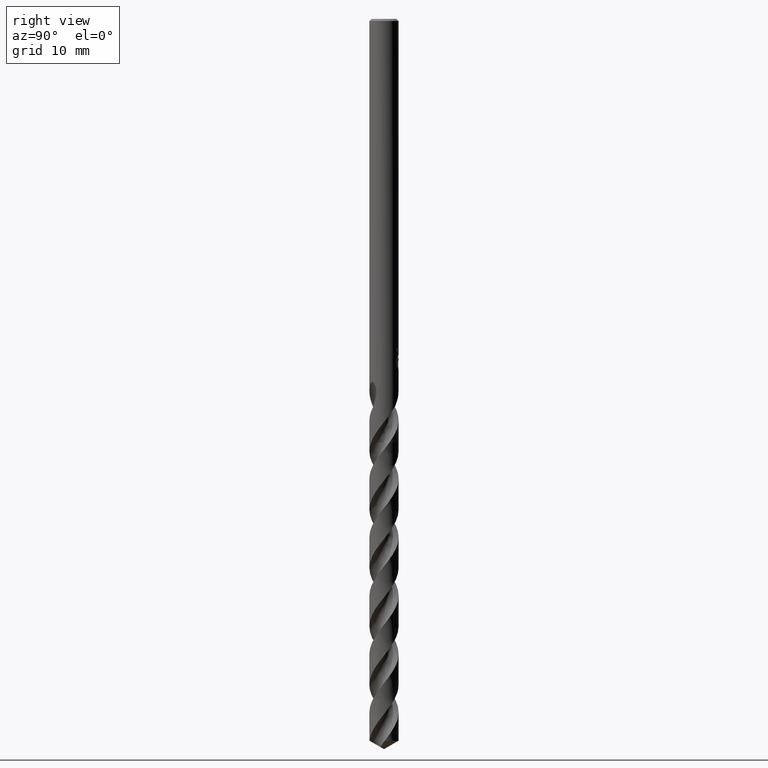
[diagram: clean part render]
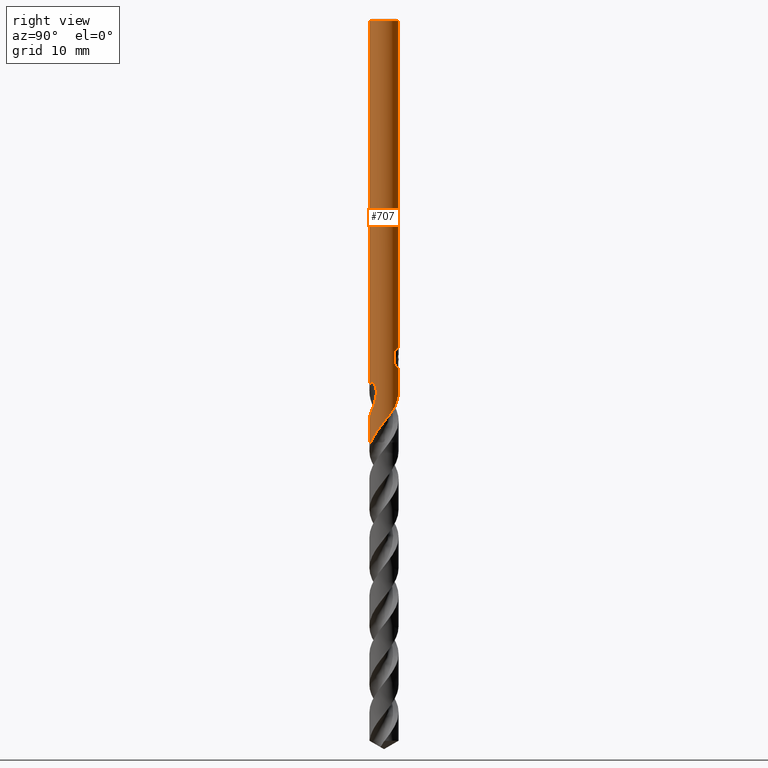
[diagram: same view with one face highlighted and labeled with its STEP entity id]
A machine part, right view. The second image highlights one B-rep face of the part: STEP entity #707.
In plain terms, the highlighted cylindrical surface (edge-blend (fillet) strip) has radius 2 mm, axis along (-0, -0, 1).
Its self-contained STEP definition (entity closure, byte-faithful):
#341=VERTEX_POINT('',#976);
#391=EDGE_CURVE('',#465,#607,#1033,.T.);
#415=EDGE_CURVE('',#919,#891,#1060,.T.);
#453=VERTEX_POINT('',#1101);
#465=VERTEX_POINT('',#1114);
#497=EDGE_CURVE('',#911,#937,#1150,.T.);
#509=VERTEX_POINT('',#1163);
#515=EDGE_CURVE('',#453,#881,#1170,.T.);
#517=EDGE_CURVE('',#897,#879,#1172,.T.);
#607=VERTEX_POINT('',#1271);
#625=EDGE_CURVE('',#873,#827,#1291,.T.);
#653=VERTEX_POINT('',#1321);
#681=EDGE_CURVE('',#919,#937,#1352,.T.);
#693=EDGE_CURVE('',#509,#873,#1365,.T.);
#695=EDGE_CURVE('',#949,#465,#1367,.T.);
#707=ADVANCED_FACE('',(#1379),#1380,.T.);
#715=EDGE_CURVE('',#851,#879,#1391,.T.);
#797=EDGE_CURVE('',#849,#911,#1480,.T.);
#807=EDGE_CURVE('',#653,#881,#1490,.T.);
#825=EDGE_CURVE('',#341,#653,#1509,.T.);
#827=VERTEX_POINT('',#1511);
#849=VERTEX_POINT('',#1533);
#851=VERTEX_POINT('',#1535);
#853=EDGE_CURVE('',#851,#607,#1537,.T.);
#873=VERTEX_POINT('',#1559);
#879=VERTEX_POINT('',#1566);
#881=VERTEX_POINT('',#1568);
#887=EDGE_CURVE('',#897,#341,#1574,.T.);
#889=EDGE_CURVE('',#827,#949,#1576,.T.);
#891=VERTEX_POINT('',#1578);
#897=VERTEX_POINT('',#1584);
#911=VERTEX_POINT('',#1600);
#915=EDGE_CURVE('',#891,#509,#1604,.T.);
#919=VERTEX_POINT('',#1608);
#937=VERTEX_POINT('',#1627);
#943=EDGE_CURVE('',#849,#453,#1633,.T.);
#949=VERTEX_POINT('',#1639);
#976=CARTESIAN_POINT('',(1.62728432652948,-1.16273200722759,-51.9338395401998));
#1033=B_SPLINE_CURVE_WITH_KNOTS('',3,(#4003,#4004,#4005,#4006,#4007,#4008,#4009,#4010,#4011,#4012,#4013,#4014,#4015,#4016,#4017,#4018,#4019,#4020,#4021,#4022,#4023,#4024,#4025,#4026,#4027,#4028,#4029),.UNSPECIFIED.,.F.,.F.,(4,2,3,2,2,2,2,2,2,2,2,2,4),(-0.548215590012305,-0.274107795006152,0.0,0.274107795006152,0.548215590012304,0.825730471423241,1.10324535283418,1.37444912584474,1.6456528988553,1.91870457575909,2.19175625266287,2.46480792956666,2.73785960647044),.UNSPECIFIED.);
#1060=B_SPLINE_CURVE_WITH_KNOTS('',3,(#4358,#4359,#4360,#4361,#4362,#4363,#4364,#4365,#4366,#4367,#4368,#4369,#4370,#4371),.UNSPECIFIED.,.F.,.F.,(4,2,2,2,2,2,4),(6.29875163181924,6.63672345938473,6.96307452388774,7.28942558839074,7.61577665289375,7.94212771739676,8.26462777482947),.UNSPECIFIED.);
#1101=CARTESIAN_POINT('',(2.44921270781215E-016,-2.0,-58.0));
#1114=CARTESIAN_POINT('',(0.799431726384364,1.83327818806915,-45.000000276873));
#1150=B_SPLINE_CURVE_WITH_KNOTS('',3,(#8004,#8005,#8006,#8007,#8008,#8009,#8010,#8011,#8012,#8013,#8014,#8015,#8016,#8017,#8018,#8019,#8020,#8021,#8022,#8023,#8024,#8025,#8026,#8027,#8028,#8029,#8030,#8031),.UNSPECIFIED.,.F.,.F.,(4,2,2,2,2,2,2,2,2,2,2,2,2,4),(0.0,0.979891025783958,1.51493345566995,1.9995474122048,2.56255251247716,3.23885008512034,3.82500886700077,4.09063559365806,4.28477636240836,4.46849031469403,4.70154241769869,5.04250710011559,5.52722848363497,6.07843027913602),.UNSPECIFIED.);
#1163=CARTESIAN_POINT('',(0.873560781758957,1.79913633740545,-46.3198931596091));
#1170=LINE('',#8275,#8276);
#1172=LINE('',#8279,#8280);
#1271=CARTESIAN_POINT('',(-2.82033683478733E-016,2.0,-46.0232688117743));
#1291=B_SPLINE_CURVE_WITH_KNOTS('',3,(#10122,#10123,#10124,#10125,#10126,#10127,#10128,#10129,#10130,#10131),.UNSPECIFIED.,.F.,.F.,(4,2,2,2,4),(8.58706544059272,8.90956545396504,9.23206546733736,9.56645150553826,9.90083754373918),.UNSPECIFIED.);
#1321=CARTESIAN_POINT('',(1.39015468452944,-1.43786993607936,-53.029));
#1352=LINE('',#10308,#10309);
#1365=LINE('',#11768,#11769);
#1367=B_SPLINE_CURVE_WITH_KNOTS('',3,(#11772,#11773,#11774,#11775,#11776,#11777,#11778,#11779,#11780,#11781),.UNSPECIFIED.,.F.,.F.,(4,2,2,2,4),(0.668772102201479,1.00315815330222,1.33754420440296,1.66004422746341,1.98254425052387),.UNSPECIFIED.);
#1379=FACE_OUTER_BOUND('',#11826,.T.);
#1380=CYLINDRICAL_SURFACE('',#11827,2.0);
#1391=CIRCLE('',#13279,2.0);
#1480=B_SPLINE_CURVE_WITH_KNOTS('',3,(#14926,#14927,#14928,#14929,#14930,#14931,#14932,#14933,#14934,#14935,#14936,#14937,#14938,#14939,#14940,#14941,#14942,#14943,#14944,#14945,#14946,#14947,#14948,#14949,#14950,#14951,#14952,#14953,#14954,#14955,#14956,#14957),.UNSPECIFIED.,.F.,.F.,(4,2,2,2,2,2,2,2,2,2,2,2,2,2,2,4),(0.0,0.415921494881605,0.623686639973541,0.831137669082404,1.24699902469492,1.45488942522425,1.8700262735088,2.33743914243714,2.80376110627708,4.17282005337614,4.81087585188527,5.04513687412754,5.68085788181971,6.11884074519169,6.31265790987035,6.56537457699849),.UNSPECIFIED.);
#1490=B_SPLINE_CURVE_WITH_KNOTS('',3,(#15430,#15431,#15432,#15433,#15434,#15435,#15436,#15437,#15438,#15439,#15440,#15441,#15442,#15443,#15444,#15445,#15446,#15447,#15448,#15449,#15450,#15451,#15452,#15453,#15454,#15455,#15456,#15457,#15458,#15459),.UNSPECIFIED.,.F.,.F.,(4,2,2,2,2,2,2,2,2,2,2,2,2,2,4),(0.0,0.229077637584334,0.362068198094291,0.571144048715061,1.12078100853925,1.59148265090502,2.04437094566632,3.03302513812137,3.41907925140698,3.7569592121879,4.34834155991391,4.79191993273661,5.1245473191052,5.62384074209483,6.12295032197284),.UNSPECIFIED.);
#1509=B_SPLINE_CURVE_WITH_KNOTS('',3,(#16262,#16263,#16264,#16265),.UNSPECIFIED.,.F.,.F.,(4,4),(0.0,1.14943980484443),.UNSPECIFIED.);
#1511=CARTESIAN_POINT('',(1.33721006514658,1.48723543585765,-47.2901657003257));
#1533=CARTESIAN_POINT('',(0.910184588124461,-1.7808885466364,-58.0));
#1535=CARTESIAN_POINT('',(0.0,2.0,-0.299999999999997));
#1537=LINE('',#16593,#16594);
#1559=CARTESIAN_POINT('',(0.873560781758956,1.79913633740545,-47.7587351791531));
#1566=CARTESIAN_POINT('',(2.44921270781215E-016,-2.0,-0.299999999999997));
#1568=CARTESIAN_POINT('',(-7.06423472236059E-013,-1.99999999999999,-54.9892944147125));
#1574=B_SPLINE_CURVE_WITH_KNOTS('',3,(#17408,#17409,#17410,#17411,#17412,#17413,#17414,#17415,#17416,#17417,#17418,#17419,#17420,#17421,#17422,#17423,#17424,#17425,#17426,#17427,#17428,#17429,#17430,#17431,#17432,#17433,#17434,#17435),.UNSPECIFIED.,.F.,.F.,(4,2,2,2,2,2,2,2,2,2,2,2,2,4),(0.0,0.979891025783956,1.51493345566995,1.99954741220481,2.56255251247721,3.23885008512057,3.82500886700108,4.09063559365836,4.28477636240868,4.46849031469436,4.70154241769904,5.04250710011594,5.52722848363531,6.07843027913632),.UNSPECIFIED.);
#1576=LINE('',#17438,#17439);
#1578=CARTESIAN_POINT('',(0.29010312703583,1.97884819419885,-47.9998328990228));
#1584=CARTESIAN_POINT('',(5.92093377365524E-013,-2.0,-50.9030385828122));
#1600=CARTESIAN_POINT('',(1.27443340277912,1.54136935932982,-53.029));
#1604=ELLIPSE('',#17995,6.09598914673955,2.0);
#1608=CARTESIAN_POINT('',(-7.24729156774638E-017,2.0,-48.0310253601033));
#1627=CARTESIAN_POINT('',(-5.96423247161545E-013,2.0,-50.9030385828122));
#1633=CIRCLE('',#19899,2.0);
#1639=CARTESIAN_POINT('',(1.33721006514658,1.48723543585765,-45.5150484364821));
#4003=CARTESIAN_POINT('',(0.666631086045354,1.88563066243578,-44.8151107929061));
#4004=CARTESIAN_POINT('',(0.729102320063794,1.86354507196998,-44.8780227488525));
#4005=CARTESIAN_POINT('',(0.783764436294818,1.84046805476626,-44.9577166766729));
#4006=CARTESIAN_POINT('',(0.856939166721748,1.80755766979359,-45.1337829674881));
#4007=CARTESIAN_POINT('',(0.875400981188567,1.79824167511881,-45.2302727475847));
#4008=CARTESIAN_POINT('',(0.875400981188567,1.79824167511881,-45.3216420125868));
#4009=CARTESIAN_POINT('',(0.875400981188567,1.79824167511881,-45.4130112775888));
#4010=CARTESIAN_POINT('',(0.856939166721748,1.80755766979359,-45.5095010576855));
#4011=CARTESIAN_POINT('',(0.783764436294818,1.84046805476626,-45.6855673485006));
#4012=CARTESIAN_POINT('',(0.729102320063794,1.86354507196998,-45.765261276321));
#4013=CARTESIAN_POINT('',(0.603383351336341,1.90799077087001,-45.8918671669599));
#4014=CARTESIAN_POINT('',(0.523220700755639,1.9324817755433,-45.9473851984488));
#4015=CARTESIAN_POINT('',(0.34594818022208,1.97194461719866,-46.0217410458937));
#4016=CARTESIAN_POINT('',(0.248747613970385,1.98662573029135,-46.0405166027747));
#4017=CARTESIAN_POINT('',(0.0664024182108826,2.00094055539991,-46.0405166027747));
#4018=CARTESIAN_POINT('',(-0.0298165717053062,2.00173631708055,-46.0225004233016));
#4019=CARTESIAN_POINT('',(-0.206564318568688,1.99127308369892,-45.949408961197));
#4020=CARTESIAN_POINT('',(-0.287121312363244,1.98033563604648,-45.8943562878938));
#4021=CARTESIAN_POINT('',(-0.414672305431932,1.95761889791181,-45.7673627445134));
#4022=CARTESIAN_POINT('',(-0.470171773775564,1.9443239450413,-45.6866825279345));
#4023=CARTESIAN_POINT('',(-0.544021821427443,1.92496686225787,-45.5093580077113));
#4024=CARTESIAN_POINT('',(-0.562348199187247,1.91931354991071,-45.4126592382214));
#4025=CARTESIAN_POINT('',(-0.562348199187247,1.91931354991071,-45.2306247869522));
#4026=CARTESIAN_POINT('',(-0.544021821427444,1.92496686225787,-45.1339260174622));
#4027=CARTESIAN_POINT('',(-0.470171773775569,1.9443239450413,-44.9566014972391));
#4028=CARTESIAN_POINT('',(-0.414672305431933,1.95761889791181,-44.8759212806602));
#4029=CARTESIAN_POINT('',(-0.350680272731794,1.96901583191115,-44.8122089191553));
#4358=CARTESIAN_POINT('',(-1.37648100360337,1.45096521209816,-47.3164588568619));
#4359=CARTESIAN_POINT('',(-1.31816673698937,1.50628596020562,-47.4024844309626));
#4360=CARTESIAN_POINT('',(-1.25225772826138,1.5618966813795,-47.4817936475267));
#4361=CARTESIAN_POINT('',(-1.11336107029931,1.66360432908601,-47.6210752807463));
#4362=CARTESIAN_POINT('',(-1.03560993885635,1.71378114990643,-47.6866869307959));
#4363=CARTESIAN_POINT('',(-0.863747529925185,1.80650878215652,-47.8045844711332));
#4364=CARTESIAN_POINT('',(-0.76962096706248,1.84902996088718,-47.8568713835843));
#4365=CARTESIAN_POINT('',(-0.569930857037894,1.92000186579586,-47.942429432433));
#4366=CARTESIAN_POINT('',(-0.46413564109323,1.94850394700092,-47.9757733351224));
#4367=CARTESIAN_POINT('',(-0.247741439375824,1.98764023510202,-48.0202051098028));
#4368=CARTESIAN_POINT('',(-0.137134918591789,1.99825621603292,-48.0312723335086));
#4369=CARTESIAN_POINT('',(0.0791270399578554,2.00132335359969,-48.0312723335086));
#4370=CARTESIAN_POINT('',(0.188762138964384,1.99403822635428,-48.0204593773478));
#4371=CARTESIAN_POINT('',(0.296280536758928,1.97793271966916,-47.9985887758549));
#8004=CARTESIAN_POINT('',(1.27443340277912,1.54136935932982,-53.029));
#8005=CARTESIAN_POINT('',(1.14250588825671,1.65044952900835,-52.7508201521267));
#8006=CARTESIAN_POINT('',(0.990819015406827,1.74741424166525,-52.4914669759725));
#8007=CARTESIAN_POINT('',(0.726322274010111,1.8662647703496,-52.0581995956864));
#8008=CARTESIAN_POINT('',(0.631144048625947,1.90045352762864,-51.9057617463303));
#8009=CARTESIAN_POINT('',(0.446891016817883,1.95154982399081,-51.6106814765841));
#8010=CARTESIAN_POINT('',(0.358638910892255,1.96960202720759,-51.4694145017769));
#8011=CARTESIAN_POINT('',(0.167610257338279,1.99565583830145,-51.1649465559366));
#8012=CARTESIAN_POINT('',(0.0632380601295488,2.00177256945438,-50.9993623681191));
#8013=CARTESIAN_POINT('',(-0.168545790328517,1.99689714022875,-50.6451232108188));
#8014=CARTESIAN_POINT('',(-0.305970157280141,1.9818173784247,-50.4435572717496));
#8015=CARTESIAN_POINT('',(-0.5709752997636,1.92091801941028,-50.1111889099651));
#8016=CARTESIAN_POINT('',(-0.717592089498264,1.87452037255226,-49.9490060983771));
#8017=CARTESIAN_POINT('',(-0.939495091515674,1.76727364078459,-49.7971383291646));
#8018=CARTESIAN_POINT('',(-1.01294639422617,1.72678556599747,-49.7596057523661));
#8019=CARTESIAN_POINT('',(-1.14164997194092,1.64341961466442,-49.7307739891013));
#8020=CARTESIAN_POINT('',(-1.19443854001709,1.60545413098805,-49.7302356217765));
#8021=CARTESIAN_POINT('',(-1.29276010169622,1.52725315415526,-49.7554693849241));
#8022=CARTESIAN_POINT('',(-1.33576104800075,1.48948364069817,-49.7791282882989));
#8023=CARTESIAN_POINT('',(-1.42326749715933,1.40671469713136,-49.8531542844012));
#8024=CARTESIAN_POINT('',(-1.4637519414578,1.36382174906286,-49.9078091708465));
#8025=CARTESIAN_POINT('',(-1.54667717482962,1.2701618498924,-50.0574712301094));
#8026=CARTESIAN_POINT('',(-1.58631378315256,1.21915733013005,-50.1684762546191));
#8027=CARTESIAN_POINT('',(-1.66084896159774,1.11674088399652,-50.4790559582158));
#8028=CARTESIAN_POINT('',(-1.68779515542677,1.07311639038955,-50.7002466517825));
#8029=CARTESIAN_POINT('',(-1.70502436417035,1.04555773694752,-51.2290721087933));
#8030=CARTESIAN_POINT('',(-1.69281634345216,1.07101764539592,-51.5611126594861));
#8031=CARTESIAN_POINT('',(-1.62728432652948,1.16273200722759,-51.9338395401997));
#8275=CARTESIAN_POINT('',(2.44921270781215E-016,-2.0,-54.0));
#8276=VECTOR('',#21695,1.0);
#8279=CARTESIAN_POINT('',(2.44921270781215E-016,-2.0,-54.0));
#8280=VECTOR('',#21696,1.0);
#10122=CARTESIAN_POINT('',(0.608889383206423,1.90506003029262,-47.9014263240358));
#10123=CARTESIAN_POINT('',(0.708571784879529,1.87319983770418,-47.8590444043302));
#10124=CARTESIAN_POINT('',(0.80276554539649,1.83434291458278,-47.8071148505396));
#10125=CARTESIAN_POINT('',(0.975043526735323,1.74886722480981,-47.6896937861503));
#10126=CARTESIAN_POINT('',(1.05314271318471,1.70228131076369,-47.6242003208407));
#10127=CARTESIAN_POINT('',(1.19292509476605,1.60758103315258,-47.4847832910623));
#10128=CARTESIAN_POINT('',(1.25937268791021,1.55566594184167,-47.4052131336702));
#10129=CARTESIAN_POINT('',(1.37700312772911,1.45257649498287,-47.2323227822555));
#10130=CARTESIAN_POINT('',(1.4282331184988,1.40141637672136,-47.1390261789774));
#10131=CARTESIAN_POINT('',(1.4701251946435,1.35599849265197,-47.0406377870177));
#10308=CARTESIAN_POINT('',(-2.44921270747736E-016,2.0,-54.0));
#10309=VECTOR('',#21884,1.0);
#11768=CARTESIAN_POINT('',(0.873560781758957,1.79913633740545,-47.0393141693811));
#11769=VECTOR('',#21895,1.0);
#11772=CARTESIAN_POINT('',(1.47012520202413,1.35599848465015,-45.7645763622699));
#11773=CARTESIAN_POINT('',(1.42823312429702,1.40141637093117,-45.6661879668164));
#11774=CARTESIAN_POINT('',(1.37700313158227,1.45257649149881,-45.5728913601929));
#11775=CARTESIAN_POINT('',(1.25937268715861,1.55566594260758,-45.4000010024707));
#11776=CARTESIAN_POINT('',(1.19292509135235,1.60758103586569,-45.3204308421202));
#11777=CARTESIAN_POINT('',(1.05314270451827,1.70228131624892,-45.1810138076661));
#11778=CARTESIAN_POINT('',(0.975043515457274,1.74886723125333,-45.1155203403939));
#11779=CARTESIAN_POINT('',(0.802765528370347,1.83434292218238,-44.9980992724811));
#11780=CARTESIAN_POINT('',(0.708571764716132,1.87319984550034,-44.9461697171302));
#11781=CARTESIAN_POINT('',(0.608889359769866,1.90506003778334,-44.9037877961724));
#11826=EDGE_LOOP('',(#21900,#21901,#21902,#21903,#21904,#21905,#21906,#21907,#21908,#21909,#21910,#21911,#21912,#21913,#21914,#21915,#21916,#21917));
#11827=AXIS2_PLACEMENT_3D('',#21918,#21919,#21920);
#13279=AXIS2_PLACEMENT_3D('',#21942,#21943,#21944);
#14926=CARTESIAN_POINT('',(0.910184588124468,-1.7808885466364,-58.0));
#14927=CARTESIAN_POINT('',(0.986467079647325,-1.74190174521136,-57.8909945021163));
#14928=CARTESIAN_POINT('',(1.06019067306473,-1.69804157411687,-57.7823329131507));
#14929=CARTESIAN_POINT('',(1.16621908890732,-1.62535132959475,-57.6189622437749));
#14930=CARTESIAN_POINT('',(1.20072654913493,-1.60002630357027,-57.5645585666677));
#14931=CARTESIAN_POINT('',(1.26796434961203,-1.54728449275103,-57.4556948699224));
#14932=CARTESIAN_POINT('',(1.3006796136606,-1.51988643856684,-57.4012132729875));
#14933=CARTESIAN_POINT('',(1.39632648100066,-1.43443197026042,-57.2377866565988));
#14934=CARTESIAN_POINT('',(1.45646875271388,-1.37333439480957,-57.1291082874376));
#14935=CARTESIAN_POINT('',(1.54059083420668,-1.2760941645493,-56.9657608822811));
#14936=CARTESIAN_POINT('',(1.56756797106405,-1.24280495984925,-56.9113479379802));
#14937=CARTESIAN_POINT('',(1.6451210980788,-1.14056473783576,-56.7481107280335));
#14938=CARTESIAN_POINT('',(1.69234719991609,-1.0692383701506,-56.6390295219066));
#14939=CARTESIAN_POINT('',(1.78277967941246,-0.911571838692856,-56.4077923291589));
#14940=CARTESIAN_POINT('',(1.82458997696537,-0.824708789590801,-56.2858141541884));
#14941=CARTESIAN_POINT('',(1.89530061341248,-0.645806101911879,-56.0412493658422));
#14942=CARTESIAN_POINT('',(1.92410268096062,-0.554110412206469,-55.9187295871557));
#14943=CARTESIAN_POINT('',(2.01111284224449,-0.186559567279473,-55.437899361125));
#14944=CARTESIAN_POINT('',(2.01729672149467,0.0980971668196515,-55.0848596941836));
#14945=CARTESIAN_POINT('',(1.9401076124219,0.503155517453704,-54.5593893348399));
#14946=CARTESIAN_POINT('',(1.90290797073903,0.629874860851269,-54.3887589332674));
#14947=CARTESIAN_POINT('',(1.83418971178482,0.798841441106601,-54.1610000821097));
#14948=CARTESIAN_POINT('',(1.81480694479178,0.841915291277125,-54.1032545367861));
#14949=CARTESIAN_POINT('',(1.73518748989895,1.0031939860136,-53.8786375845142));
#14950=CARTESIAN_POINT('',(1.67718312746244,1.09283514790804,-53.7334857070894));
#14951=CARTESIAN_POINT('',(1.5937307843099,1.20973338816218,-53.5403230050052));
#14952=CARTESIAN_POINT('',(1.52626758823306,1.29504642847036,-53.3905314543429));
#14953=CARTESIAN_POINT('',(1.4466439532652,1.38149236902227,-53.2543072502778));
#14954=CARTESIAN_POINT('',(1.42050014378064,1.40843860350198,-53.2140110740695));
#14955=CARTESIAN_POINT('',(1.35602736442459,1.47097719921524,-53.1240135785713));
#14956=CARTESIAN_POINT('',(1.31670765151073,1.50641620917484,-53.0755906769353));
#14957=CARTESIAN_POINT('',(1.27443340277912,1.54136935932982,-53.029));
#15430=CARTESIAN_POINT('',(1.39015468452944,-1.43786993607936,-53.029));
#15431=CARTESIAN_POINT('',(1.35767021840754,-1.46927641563684,-53.0905558432685));
#15432=CARTESIAN_POINT('',(1.32356746144234,-1.50015046338431,-53.1525371230667));
#15433=CARTESIAN_POINT('',(1.26577079944908,-1.54873931940322,-53.2507281516205));
#15434=CARTESIAN_POINT('',(1.24413673863658,-1.56618019849211,-53.2861837523025));
#15435=CARTESIAN_POINT('',(1.18666066112386,-1.61052953791549,-53.3775926939421));
#15436=CARTESIAN_POINT('',(1.15053227605037,-1.63656541485263,-53.432589108757));
#15437=CARTESIAN_POINT('',(1.01331110391237,-1.72844222702642,-53.6387295473662));
#15438=CARTESIAN_POINT('',(0.909084964694384,-1.78527714877727,-53.7892878698117));
#15439=CARTESIAN_POINT('',(0.710401973389509,-1.87225529619443,-54.0672440061321));
#15440=CARTESIAN_POINT('',(0.615862593801042,-1.90546937995851,-54.1938073491762));
#15441=CARTESIAN_POINT('',(0.425415654688868,-1.95662254990632,-54.4437048161422));
#15442=CARTESIAN_POINT('',(0.330537913377967,-1.97484530877693,-54.5664876338777));
#15443=CARTESIAN_POINT('',(0.0262091776432689,-2.01084205456157,-54.9571943597388));
#15444=CARTESIAN_POINT('',(-0.185253173995561,-2.00249297648808,-55.2228601561124));
#15445=CARTESIAN_POINT('',(-0.472239935601212,-1.94518475865174,-55.5951200962604));
#15446=CARTESIAN_POINT('',(-0.551766318739034,-1.92413843061563,-55.6995608752568));
#15447=CARTESIAN_POINT('',(-0.698045172738729,-1.87560845806364,-55.8955922398732));
#15448=CARTESIAN_POINT('',(-0.765024748091126,-1.84929863684518,-55.9870033658642));
#15449=CARTESIAN_POINT('',(-0.944895314932655,-1.76720280443896,-56.2387337847556));
#15450=CARTESIAN_POINT('',(-1.05422022943044,-1.70425175562808,-56.3986500462173));
#15451=CARTESIAN_POINT('',(-1.23396820993426,-1.57678222841074,-56.6789098568663));
#15452=CARTESIAN_POINT('',(-1.30702369884474,-1.51677323567229,-56.7988479063442));
#15453=CARTESIAN_POINT('',(-1.42694165882982,-1.40315672740491,-57.0091026536591));
#15454=CARTESIAN_POINT('',(-1.47571705335959,-1.35176686595226,-57.0991467812125));
#15455=CARTESIAN_POINT('',(-1.5906500769183,-1.21701719660768,-57.3244507967456));
#15456=CARTESIAN_POINT('',(-1.65305918140762,-1.13079000552582,-57.459352794085));
#15457=CARTESIAN_POINT('',(-1.76354992537428,-0.949301870566601,-57.7298107416314));
#15458=CARTESIAN_POINT('',(-1.81148318473936,-0.854296043414462,-57.8648323212794));
#15459=CARTESIAN_POINT('',(-1.85164800125341,-0.755909835532146,-58.0));
#16262=CARTESIAN_POINT('',(1.6272843265821,-1.16273200715394,-51.9338395402287));
#16263=CARTESIAN_POINT('',(1.56280597492687,-1.25297172740491,-52.3005828474421));
#16264=CARTESIAN_POINT('',(1.48509232689284,-1.34608276885509,-52.6695086289497));
#16265=CARTESIAN_POINT('',(1.39015468452944,-1.43786993607936,-53.029));
#16593=CARTESIAN_POINT('',(-2.44921270747736E-016,2.0,-54.0));
#16594=VECTOR('',#22049,1.0);
#17408=CARTESIAN_POINT('',(-1.27443340277912,-1.54136935932982,-53.029));
#17409=CARTESIAN_POINT('',(-1.14250588825672,-1.65044952900835,-52.7508201521267));
#17410=CARTESIAN_POINT('',(-0.990819015406827,-1.74741424166525,-52.4914669759725));
#17411=CARTESIAN_POINT('',(-0.726322274010111,-1.8662647703496,-52.0581995956864));
#17412=CARTESIAN_POINT('',(-0.631144048625946,-1.90045352762864,-51.9057617463303));
#17413=CARTESIAN_POINT('',(-0.446891016817883,-1.95154982399081,-51.6106814765841));
#17414=CARTESIAN_POINT('',(-0.358638910892255,-1.96960202720759,-51.4694145017769));
#17415=CARTESIAN_POINT('',(-0.16761025733827,-1.99565583830145,-51.1649465559366));
#17416=CARTESIAN_POINT('',(-0.0632380601295456,-2.00177256945438,-50.9993623681191));
#17417=CARTESIAN_POINT('',(0.168545790328537,-1.99689714022875,-50.6451232108188));
#17418=CARTESIAN_POINT('',(0.305970157280148,-1.9818173784247,-50.4435572717496));
#17419=CARTESIAN_POINT('',(0.570975299763575,-1.92091801941028,-50.1111889099651));
#17420=CARTESIAN_POINT('',(0.717592089498258,-1.87452037255226,-49.9490060983771));
#17421=CARTESIAN_POINT('',(0.939495091515668,-1.76727364078459,-49.7971383291646));
#17422=CARTESIAN_POINT('',(1.01294639422617,-1.72678556599748,-49.7596057523661));
#17423=CARTESIAN_POINT('',(1.14164997194093,-1.64341961466442,-49.7307739891013));
#17424=CARTESIAN_POINT('',(1.19443854001709,-1.60545413098805,-49.7302356217765));
#17425=CARTESIAN_POINT('',(1.29276010169622,-1.52725315415526,-49.7554693849241));
#17426=CARTESIAN_POINT('',(1.33576104800075,-1.48948364069817,-49.7791282882989));
#17427=CARTESIAN_POINT('',(1.42326749715933,-1.40671469713136,-49.8531542844012));
#17428=CARTESIAN_POINT('',(1.4637519414578,-1.36382174906286,-49.9078091708465));
#17429=CARTESIAN_POINT('',(1.54667717482962,-1.2701618498924,-50.0574712301094));
#17430=CARTESIAN_POINT('',(1.58631378315256,-1.21915733013006,-50.1684762546191));
#17431=CARTESIAN_POINT('',(1.66084896159774,-1.11674088399652,-50.4790559582158));
#17432=CARTESIAN_POINT('',(1.68779515542677,-1.07311639038955,-50.7002466517825));
#17433=CARTESIAN_POINT('',(1.70502436417035,-1.04555773694752,-51.2290721087933));
#17434=CARTESIAN_POINT('',(1.69281634345216,-1.07101764539592,-51.5611126594861));
#17435=CARTESIAN_POINT('',(1.62728432652948,-1.16273200722759,-51.9338395401997));
#17438=CARTESIAN_POINT('',(1.33721006514658,1.48723543585765,-46.4026070684039));
#17439=VECTOR('',#22083,1.0);
#17995=AXIS2_PLACEMENT_3D('',#22107,#22108,#22109);
#19899=AXIS2_PLACEMENT_3D('',#22128,#22129,#22130);
#21695=DIRECTION('',(-0.0,-0.0,1.0));
#21696=DIRECTION('',(-0.0,-0.0,1.0));
#21884=DIRECTION('',(0.0,0.0,-1.0));
#21895=DIRECTION('',(0.0,0.0,-1.0));
#21900=ORIENTED_EDGE('',*,*,#853,.F.);
#21901=ORIENTED_EDGE('',*,*,#715,.T.);
#21902=ORIENTED_EDGE('',*,*,#517,.F.);
#21903=ORIENTED_EDGE('',*,*,#887,.T.);
#21904=ORIENTED_EDGE('',*,*,#825,.T.);
#21905=ORIENTED_EDGE('',*,*,#807,.T.);
#21906=ORIENTED_EDGE('',*,*,#515,.F.);
#21907=ORIENTED_EDGE('',*,*,#943,.F.);
#21908=ORIENTED_EDGE('',*,*,#797,.T.);
#21909=ORIENTED_EDGE('',*,*,#497,.T.);
#21910=ORIENTED_EDGE('',*,*,#681,.F.);
#21911=ORIENTED_EDGE('',*,*,#415,.T.);
#21912=ORIENTED_EDGE('',*,*,#915,.T.);
#21913=ORIENTED_EDGE('',*,*,#693,.T.);
#21914=ORIENTED_EDGE('',*,*,#625,.T.);
#21915=ORIENTED_EDGE('',*,*,#889,.T.);
#21916=ORIENTED_EDGE('',*,*,#695,.T.);
#21917=ORIENTED_EDGE('',*,*,#391,.T.);
#21918=CARTESIAN_POINT('',(0.0,0.0,-54.0));
#21919=DIRECTION('',(-0.0,-0.0,1.0));
#21920=DIRECTION('',(0.0,1.0,0.0));
#21942=CARTESIAN_POINT('',(0.0,0.0,-0.299999999999997));
#21943=DIRECTION('',(0.0,0.0,-1.0));
#21944=DIRECTION('',(0.0,1.0,0.0));
#22049=DIRECTION('',(0.0,0.0,-1.0));
#22083=DIRECTION('',(-0.0,-0.0,1.0));
#22107=CARTESIAN_POINT('',(0.0,0.0,-48.8351219173269));
#22108=DIRECTION('',(0.944648353914092,0.0,-0.328084573619969));
#22109=DIRECTION('',(0.328084573619968,-0.0,0.944648353914092));
#22128=CARTESIAN_POINT('',(0.0,0.0,-58.0));
#22129=DIRECTION('',(0.0,0.0,-1.0));
#22130=DIRECTION('',(0.0,1.0,0.0));